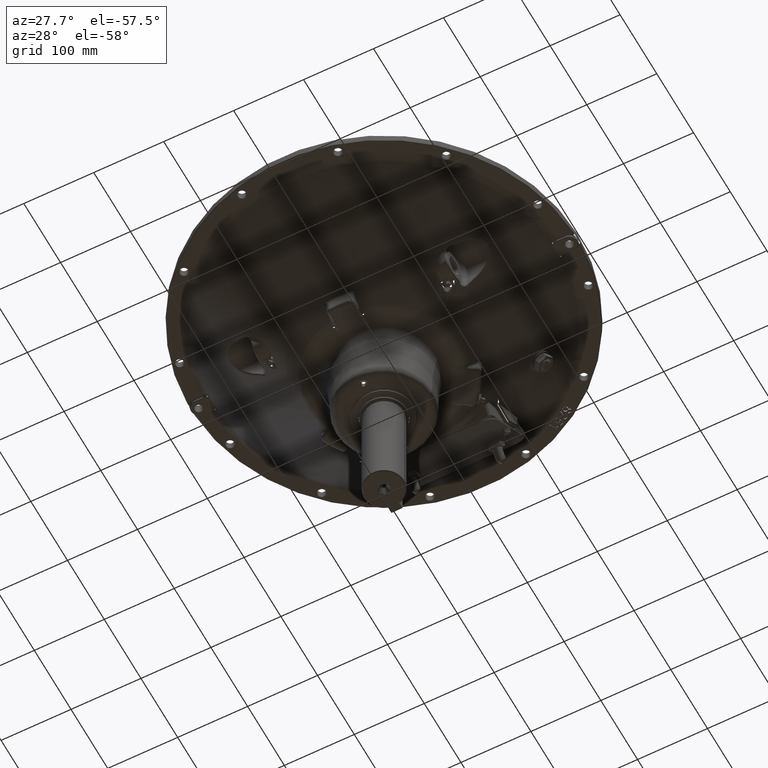
[diagram: clean part render]
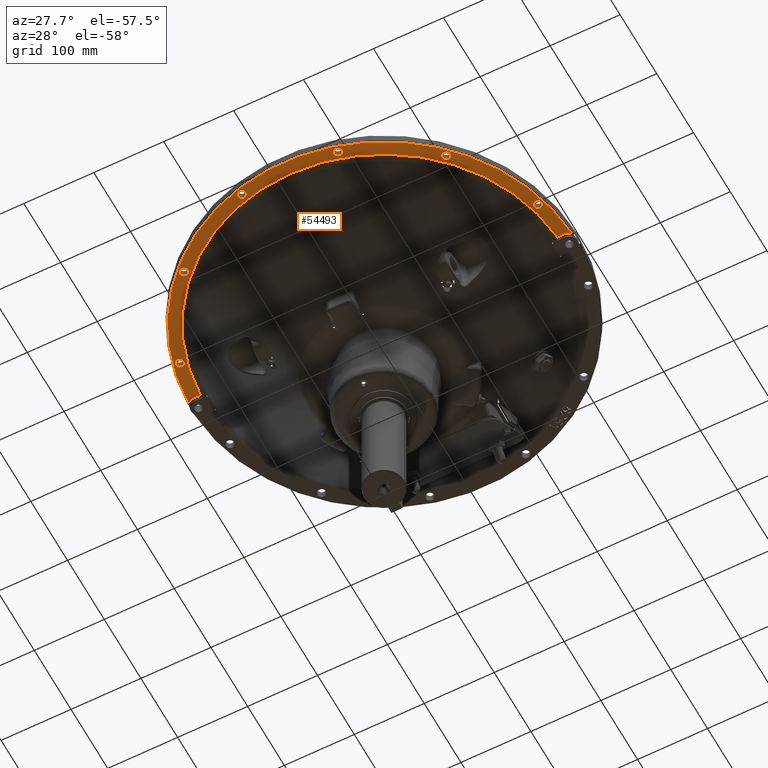
[diagram: same view with one face highlighted and labeled with its STEP entity id]
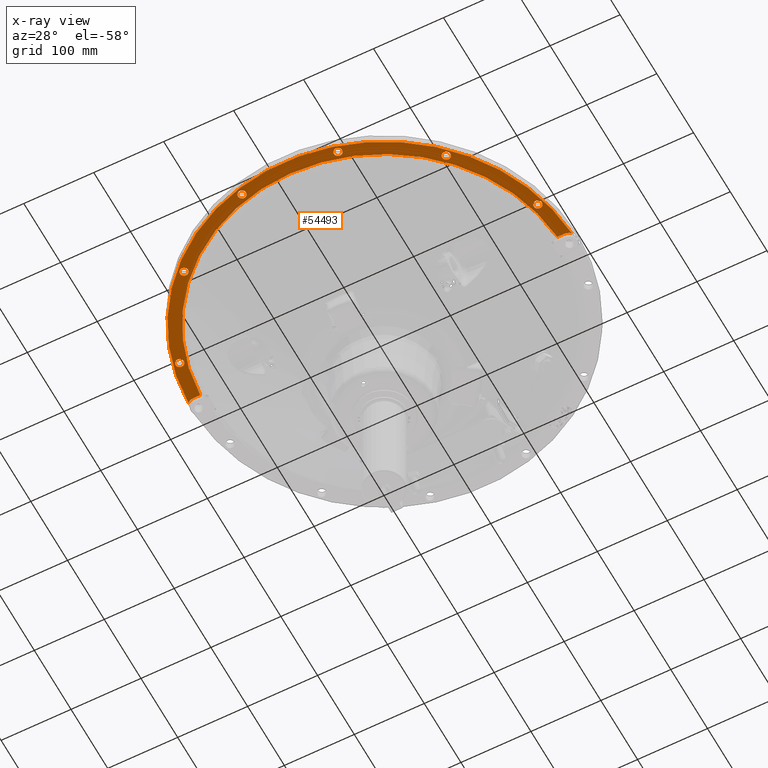
[diagram: x-ray of the same camera — body ghosted, the highlighted face saturated]
A machine part, auxiliary view. The second image highlights one B-rep face of the part: STEP entity #54493.
The next image is the same camera in x-ray: the body ghosted, the highlighted face saturated — about 0% of this face is hidden behind the body in this view.
In plain terms, the highlighted planar face has unit normal (0, -0, 1).
Its self-contained STEP definition (entity closure, byte-faithful):
#7357 = EDGE_CURVE ( 'NONE', #55419, #55418, #39000, .T. ) ;
#7362 = EDGE_CURVE ( 'NONE', #55415, #55414, #39005, .T. ) ;
#7366 = EDGE_CURVE ( 'NONE', #55411, #55410, #39011, .T. ) ;
#7371 = EDGE_CURVE ( 'NONE', #55407, #55406, #39016, .T. ) ;
#7376 = EDGE_CURVE ( 'NONE', #55403, #55402, #39022, .T. ) ;
#7432 = EDGE_CURVE ( 'NONE', #41818, #41824, #39076, .T. ) ;
#7594 = EDGE_CURVE ( 'NONE', #41946, #41949, #39174, .T. ) ;
#7617 = EDGE_CURVE ( 'NONE', #41824, #41946, #39181, .T. ) ;
#7641 = EDGE_CURVE ( 'NONE', #41949, #41952, #39192, .T. ) ;
#7644 = EDGE_CURVE ( 'NONE', #41952, #41954, #39187, .T. ) ;
#7850 = EDGE_CURVE ( 'NONE', #55363, #55365, #39349, .T. ) ;
#7851 = EDGE_CURVE ( 'NONE', #41954, #41818, #39351, .T. ) ;
#10974 = AXIS2_PLACEMENT_3D ( 'NONE', #33230, #33231, #33232 ) ;
#10975 = AXIS2_PLACEMENT_3D ( 'NONE', #33239, #33241, #33243 ) ;
#10977 = AXIS2_PLACEMENT_3D ( 'NONE', #33249, #33250, #33251 ) ;
#10979 = AXIS2_PLACEMENT_3D ( 'NONE', #33255, #33256, #33257 ) ;
#10981 = AXIS2_PLACEMENT_3D ( 'NONE', #33265, #33267, #33269 ) ;
#11032 = AXIS2_PLACEMENT_3D ( 'NONE', #33930, #33931, #33932 ) ;
#11040 = AXIS2_PLACEMENT_3D ( 'NONE', #33992, #33995, #33997 ) ;
#11048 = AXIS2_PLACEMENT_3D ( 'NONE', #34030, #34043, #34044 ) ;
#11065 = AXIS2_PLACEMENT_3D ( 'NONE', #62176, #62230, #62231 ) ;
#11074 = AXIS2_PLACEMENT_3D ( 'NONE', #62164, #62235, #62237 ) ;
#16088 = CARTESIAN_POINT ( 'NONE',  ( -68.61616409474035500, -256.0790106220610500, -11.11249999999999700 ) ) ;
#16091 = DIRECTION ( 'NONE',  ( -0.0000000000000000000, -0.0000000000000000000, -1.000000000000000000 ) ) ;
#16093 = DIRECTION ( 'NONE',  ( -1.000000000000000000, 0.0000000000000000000, 0.0000000000000000000 ) ) ;
#23908 = CARTESIAN_POINT ( 'NONE',  ( 181.5097215273202700, -187.4628465273169400, -11.11249999999999700 ) ) ;
#23909 = CARTESIAN_POINT ( 'NONE',  ( 193.4159715273202700, -187.4628465273169400, -11.11249999999999700 ) ) ;
#23946 = CARTESIAN_POINT ( 'NONE',  ( 262.0321356220612800, -68.61616409473950300, -11.11249999999999700 ) ) ;
#23947 = CARTESIAN_POINT ( 'NONE',  ( 250.1258856220612800, -68.61616409473950300, -11.11249999999999700 ) ) ;
#23950 = CARTESIAN_POINT ( 'NONE',  ( 74.56928909474220300, -256.0790106220605900, -11.11249999999999700 ) ) ;
#23951 = CARTESIAN_POINT ( 'NONE',  ( 62.66303909474218900, -256.0790106220605900, -11.11249999999999700 ) ) ;
#23954 = CARTESIAN_POINT ( 'NONE',  ( -62.66303909474035500, -256.0790106220610500, -11.11249999999999700 ) ) ;
#23955 = CARTESIAN_POINT ( 'NONE',  ( -74.56928909474037000, -256.0790106220610500, -11.11249999999999700 ) ) ;
#23958 = CARTESIAN_POINT ( 'NONE',  ( -181.5097215273176200, -187.4628465273195800, -11.11249999999999700 ) ) ;
#23959 = CARTESIAN_POINT ( 'NONE',  ( -193.4159715273176200, -187.4628465273195800, -11.11249999999999700 ) ) ;
#23962 = CARTESIAN_POINT ( 'NONE',  ( -250.1258856220603400, -68.61616409474308400, -11.11249999999999700 ) ) ;
#23963 = CARTESIAN_POINT ( 'NONE',  ( -262.0321356220603700, -68.61616409474308400, -11.11249999999999700 ) ) ;
#25789 = EDGE_CURVE ( 'NONE', #55410, #55411, #27260, .T. ) ;
#25812 = EDGE_CURVE ( 'NONE', #55418, #55419, #27303, .T. ) ;
#25868 = EDGE_CURVE ( 'NONE', #55406, #55407, #27394, .T. ) ;
#25904 = EDGE_CURVE ( 'NONE', #55414, #55415, #27453, .T. ) ;
#25921 = EDGE_CURVE ( 'NONE', #55402, #55403, #27477, .T. ) ;
#26040 = EDGE_CURVE ( 'NONE', #55365, #55363, #27589, .T. ) ;
#27260 = CIRCLE ( 'NONE', #45881, 5.953125000000003600 ) ;
#27303 = CIRCLE ( 'NONE', #45885, 5.953125000000003600 ) ;
#27394 = CIRCLE ( 'NONE', #45903, 5.953125000000003600 ) ;
#27453 = CIRCLE ( 'NONE', #45916, 5.953125000000003600 ) ;
#27477 = CIRCLE ( 'NONE', #45915, 5.953125000000003600 ) ;
#27589 = CIRCLE ( 'NONE', #45941, 5.953125000000003600 ) ;
#33230 = CARTESIAN_POINT ( 'NONE',  ( -256.0790106220603700, -68.61616409474308400, -11.11249999999999700 ) ) ;
#33231 = DIRECTION ( 'NONE',  ( -0.0000000000000000000, -0.0000000000000000000, -1.000000000000000000 ) ) ;
#33232 = DIRECTION ( 'NONE',  ( -1.000000000000000000, 0.0000000000000000000, 0.0000000000000000000 ) ) ;
#33239 = CARTESIAN_POINT ( 'NONE',  ( -187.4628465273176200, -187.4628465273195800, -11.11249999999999700 ) ) ;
#33241 = DIRECTION ( 'NONE',  ( -0.0000000000000000000, -0.0000000000000000000, -1.000000000000000000 ) ) ;
#33243 = DIRECTION ( 'NONE',  ( -1.000000000000000000, 0.0000000000000000000, 0.0000000000000000000 ) ) ;
#33249 = CARTESIAN_POINT ( 'NONE',  ( -68.61616409474035500, -256.0790106220610500, -11.11249999999999700 ) ) ;
#33250 = DIRECTION ( 'NONE',  ( -0.0000000000000000000, -0.0000000000000000000, -1.000000000000000000 ) ) ;
#33251 = DIRECTION ( 'NONE',  ( -1.000000000000000000, 0.0000000000000000000, 0.0000000000000000000 ) ) ;
#33255 = CARTESIAN_POINT ( 'NONE',  ( 68.61616409474218900, -256.0790106220605900, -11.11249999999999700 ) ) ;
#33256 = DIRECTION ( 'NONE',  ( -0.0000000000000000000, -0.0000000000000000000, -1.000000000000000000 ) ) ;
#33257 = DIRECTION ( 'NONE',  ( -1.000000000000000000, 0.0000000000000000000, 0.0000000000000000000 ) ) ;
#33265 = CARTESIAN_POINT ( 'NONE',  ( 256.0790106220612800, -68.61616409473950300, -11.11249999999999700 ) ) ;
#33267 = DIRECTION ( 'NONE',  ( -0.0000000000000000000, -0.0000000000000000000, -1.000000000000000000 ) ) ;
#33269 = DIRECTION ( 'NONE',  ( -1.000000000000000000, 0.0000000000000000000, 0.0000000000000000000 ) ) ;
#33416 = CARTESIAN_POINT ( 'NONE',  ( -2.540799607108819100E-014, -14.20644059404252400, -11.11249999999999700 ) ) ;
#33427 = DIRECTION ( 'NONE',  ( 1.000000000000000000, -8.748362787141501000E-017, -0.0000000000000000000 ) ) ;
#33930 = CARTESIAN_POINT ( 'NONE',  ( 0.0000000000000000000, 0.0000000000000000000, -11.11249999999999700 ) ) ;
#33931 = DIRECTION ( 'NONE',  ( 0.0000000000000000000, 0.0000000000000000000, -1.000000000000000000 ) ) ;
#33932 = DIRECTION ( 'NONE',  ( 1.000000000000000000, 0.0000000000000000000, 0.0000000000000000000 ) ) ;
#33992 = CARTESIAN_POINT ( 'NONE',  ( 264.9877895485267300, 0.0000000000000000000, -11.11249999999999700 ) ) ;
#33995 = DIRECTION ( 'NONE',  ( -0.0000000000000000000, -0.0000000000000000000, 1.000000000000000000 ) ) ;
#33997 = DIRECTION ( 'NONE',  ( 1.000000000000000000, 0.0000000000000000000, 0.0000000000000000000 ) ) ;
#34030 = CARTESIAN_POINT ( 'NONE',  ( -264.9877895485267300, 0.0000000000000000000, -11.11249999999999700 ) ) ;
#34043 = DIRECTION ( 'NONE',  ( -0.0000000000000000000, -0.0000000000000000000, 1.000000000000000000 ) ) ;
#34044 = DIRECTION ( 'NONE',  ( 1.000000000000000000, 0.0000000000000000000, 0.0000000000000000000 ) ) ;
#34045 = CARTESIAN_POINT ( 'NONE',  ( 2.540799607108819100E-014, -14.20644059404252400, -11.11249999999999700 ) ) ;
#34046 = DIRECTION ( 'NONE',  ( 1.000000000000000000, 8.748362787141501000E-017, -0.0000000000000000000 ) ) ;
#35559 = ORIENTED_EDGE ( 'NONE', *, *, #7850, .F. ) ;
#35560 = ORIENTED_EDGE ( 'NONE', *, *, #26040, .F. ) ;
#35561 = ORIENTED_EDGE ( 'NONE', *, *, #7366, .F. ) ;
#35562 = ORIENTED_EDGE ( 'NONE', *, *, #25789, .F. ) ;
#35563 = ORIENTED_EDGE ( 'NONE', *, *, #7357, .F. ) ;
#35564 = ORIENTED_EDGE ( 'NONE', *, *, #25812, .F. ) ;
#35565 = ORIENTED_EDGE ( 'NONE', *, *, #7617, .T. ) ;
#35566 = ORIENTED_EDGE ( 'NONE', *, *, #7594, .T. ) ;
#35567 = ORIENTED_EDGE ( 'NONE', *, *, #7641, .T. ) ;
#35568 = ORIENTED_EDGE ( 'NONE', *, *, #7644, .T. ) ;
#35569 = ORIENTED_EDGE ( 'NONE', *, *, #7851, .T. ) ;
#35570 = ORIENTED_EDGE ( 'NONE', *, *, #7432, .T. ) ;
#35571 = ORIENTED_EDGE ( 'NONE', *, *, #7362, .F. ) ;
#35572 = ORIENTED_EDGE ( 'NONE', *, *, #25904, .F. ) ;
#35573 = ORIENTED_EDGE ( 'NONE', *, *, #7371, .F. ) ;
#35574 = ORIENTED_EDGE ( 'NONE', *, *, #25868, .F. ) ;
#35575 = ORIENTED_EDGE ( 'NONE', *, *, #7376, .F. ) ;
#35576 = ORIENTED_EDGE ( 'NONE', *, *, #25921, .F. ) ;
#39000 = CIRCLE ( 'NONE', #10974, 5.953125000000003600 ) ;
#39005 = CIRCLE ( 'NONE', #10975, 5.953125000000003600 ) ;
#39011 = CIRCLE ( 'NONE', #10977, 5.953125000000003600 ) ;
#39016 = CIRCLE ( 'NONE', #10979, 5.953125000000003600 ) ;
#39022 = CIRCLE ( 'NONE', #10981, 5.953125000000003600 ) ;
#39049 = VECTOR ( 'NONE', #33427, 1000.000000000000000 ) ;
#39076 = LINE ( 'NONE', #33416, #39049 ) ;
#39174 = CIRCLE ( 'NONE', #11032, 274.2455132382871200 ) ;
#39181 = CIRCLE ( 'NONE', #11040, 14.20644059404252400 ) ;
#39187 = LINE ( 'NONE', #34045, #39190 ) ;
#39190 = VECTOR ( 'NONE', #34046, 1000.000000000000000 ) ;
#39192 = CIRCLE ( 'NONE', #11048, 14.20644059404252400 ) ;
#39349 = CIRCLE ( 'NONE', #11065, 5.953125000000003600 ) ;
#39351 = CIRCLE ( 'NONE', #11074, 255.6718398718236900 ) ;
#39639 = EDGE_LOOP ( 'NONE', ( #35559, #35560 ) ) ;
#39641 = EDGE_LOOP ( 'NONE', ( #35563, #35564 ) ) ;
#39723 = EDGE_LOOP ( 'NONE', ( #35561, #35562 ) ) ;
#41818 = VERTEX_POINT ( 'NONE', #50859 ) ;
#41824 = VERTEX_POINT ( 'NONE', #50861 ) ;
#41946 = VERTEX_POINT ( 'NONE', #50904 ) ;
#41949 = VERTEX_POINT ( 'NONE', #50905 ) ;
#41952 = VERTEX_POINT ( 'NONE', #50906 ) ;
#41954 = VERTEX_POINT ( 'NONE', #50907 ) ;
#45881 = AXIS2_PLACEMENT_3D ( 'NONE', #16088, #16091, #16093 ) ;
#45885 = AXIS2_PLACEMENT_3D ( 'NONE', #47810, #47812, #47813 ) ;
#45903 = AXIS2_PLACEMENT_3D ( 'NONE', #47930, #47940, #47941 ) ;
#45915 = AXIS2_PLACEMENT_3D ( 'NONE', #48099, #48111, #48112 ) ;
#45916 = AXIS2_PLACEMENT_3D ( 'NONE', #48070, #48077, #48078 ) ;
#45941 = AXIS2_PLACEMENT_3D ( 'NONE', #48907, #48911, #48913 ) ;
#46189 = AXIS2_PLACEMENT_3D ( 'NONE', #52419, #52428, #52429 ) ;
#47810 = CARTESIAN_POINT ( 'NONE',  ( -256.0790106220603700, -68.61616409474308400, -11.11249999999999700 ) ) ;
#47812 = DIRECTION ( 'NONE',  ( -0.0000000000000000000, -0.0000000000000000000, -1.000000000000000000 ) ) ;
#47813 = DIRECTION ( 'NONE',  ( -1.000000000000000000, 0.0000000000000000000, 0.0000000000000000000 ) ) ;
#47930 = CARTESIAN_POINT ( 'NONE',  ( 68.61616409474218900, -256.0790106220605900, -11.11249999999999700 ) ) ;
#47940 = DIRECTION ( 'NONE',  ( -0.0000000000000000000, -0.0000000000000000000, -1.000000000000000000 ) ) ;
#47941 = DIRECTION ( 'NONE',  ( -1.000000000000000000, 0.0000000000000000000, 0.0000000000000000000 ) ) ;
#48070 = CARTESIAN_POINT ( 'NONE',  ( -187.4628465273176200, -187.4628465273195800, -11.11249999999999700 ) ) ;
#48077 = DIRECTION ( 'NONE',  ( -0.0000000000000000000, -0.0000000000000000000, -1.000000000000000000 ) ) ;
#48078 = DIRECTION ( 'NONE',  ( -1.000000000000000000, 0.0000000000000000000, 0.0000000000000000000 ) ) ;
#48099 = CARTESIAN_POINT ( 'NONE',  ( 256.0790106220612800, -68.61616409473950300, -11.11249999999999700 ) ) ;
#48111 = DIRECTION ( 'NONE',  ( -0.0000000000000000000, -0.0000000000000000000, -1.000000000000000000 ) ) ;
#48112 = DIRECTION ( 'NONE',  ( -1.000000000000000000, 0.0000000000000000000, 0.0000000000000000000 ) ) ;
#48907 = CARTESIAN_POINT ( 'NONE',  ( 187.4628465273202700, -187.4628465273169400, -11.11249999999999700 ) ) ;
#48911 = DIRECTION ( 'NONE',  ( -0.0000000000000000000, -0.0000000000000000000, -1.000000000000000000 ) ) ;
#48913 = DIRECTION ( 'NONE',  ( -1.000000000000000000, 0.0000000000000000000, 0.0000000000000000000 ) ) ;
#50859 = CARTESIAN_POINT ( 'NONE',  ( 255.2768433467700800, -14.20644059404254700, -11.11249999999999700 ) ) ;
#50861 = CARTESIAN_POINT ( 'NONE',  ( 264.9877895485267300, -14.20644059404253700, -11.11249999999999700 ) ) ;
#50904 = CARTESIAN_POINT ( 'NONE',  ( 274.0264135080052500, -10.96021127858402100, -11.11249999999999700 ) ) ;
#50905 = CARTESIAN_POINT ( 'NONE',  ( -274.0264135080053100, -10.96021127858398400, -11.11249999999999700 ) ) ;
#50906 = CARTESIAN_POINT ( 'NONE',  ( -264.9877895485267300, -14.20644059404253700, -11.11249999999999700 ) ) ;
#50907 = CARTESIAN_POINT ( 'NONE',  ( -255.2768433467700800, -14.20644059404254700, -11.11249999999999700 ) ) ;
#52419 = CARTESIAN_POINT ( 'NONE',  ( 0.0000000000000000000, 276.2250000000000200, -11.11249999999999700 ) ) ;
#52420 = PLANE ( 'NONE',  #46189 ) ;
#52428 = DIRECTION ( 'NONE',  ( 0.0000000000000000000, -0.0000000000000000000, 1.000000000000000000 ) ) ;
#52429 = DIRECTION ( 'NONE',  ( 1.000000000000000000, 0.0000000000000000000, 0.0000000000000000000 ) ) ;
#54493 = ADVANCED_FACE ( 'NONE', ( #64763, #64788, #64792, #64796, #64666, #64786, #64790 ), #52420, .F. ) ;
#55363 = VERTEX_POINT ( 'NONE', #23908 ) ;
#55365 = VERTEX_POINT ( 'NONE', #23909 ) ;
#55402 = VERTEX_POINT ( 'NONE', #23946 ) ;
#55403 = VERTEX_POINT ( 'NONE', #23947 ) ;
#55406 = VERTEX_POINT ( 'NONE', #23950 ) ;
#55407 = VERTEX_POINT ( 'NONE', #23951 ) ;
#55410 = VERTEX_POINT ( 'NONE', #23954 ) ;
#55411 = VERTEX_POINT ( 'NONE', #23955 ) ;
#55414 = VERTEX_POINT ( 'NONE', #23958 ) ;
#55415 = VERTEX_POINT ( 'NONE', #23959 ) ;
#55418 = VERTEX_POINT ( 'NONE', #23962 ) ;
#55419 = VERTEX_POINT ( 'NONE', #23963 ) ;
#62164 = CARTESIAN_POINT ( 'NONE',  ( 0.0000000000000000000, 0.0000000000000000000, -11.11249999999999700 ) ) ;
#62176 = CARTESIAN_POINT ( 'NONE',  ( 187.4628465273202700, -187.4628465273169400, -11.11249999999999700 ) ) ;
#62230 = DIRECTION ( 'NONE',  ( -0.0000000000000000000, -0.0000000000000000000, -1.000000000000000000 ) ) ;
#62231 = DIRECTION ( 'NONE',  ( -1.000000000000000000, 0.0000000000000000000, 0.0000000000000000000 ) ) ;
#62235 = DIRECTION ( 'NONE',  ( -0.0000000000000000000, -0.0000000000000000000, 1.000000000000000000 ) ) ;
#62237 = DIRECTION ( 'NONE',  ( 1.000000000000000000, 0.0000000000000000000, 0.0000000000000000000 ) ) ;
#64666 = FACE_BOUND ( 'NONE', #64685, .T. ) ;
#64685 = EDGE_LOOP ( 'NONE', ( #35571, #35572 ) ) ;
#64687 = EDGE_LOOP ( 'NONE', ( #35573, #35574 ) ) ;
#64699 = EDGE_LOOP ( 'NONE', ( #35565, #35566, #35567, #35568, #35569, #35570 ) ) ;
#64718 = EDGE_LOOP ( 'NONE', ( #35575, #35576 ) ) ;
#64763 = FACE_BOUND ( 'NONE', #39639, .T. ) ;
#64786 = FACE_BOUND ( 'NONE', #64687, .T. ) ;
#64788 = FACE_BOUND ( 'NONE', #39723, .T. ) ;
#64790 = FACE_BOUND ( 'NONE', #64718, .T. ) ;
#64792 = FACE_BOUND ( 'NONE', #39641, .T. ) ;
#64796 = FACE_OUTER_BOUND ( 'NONE', #64699, .T. ) ;